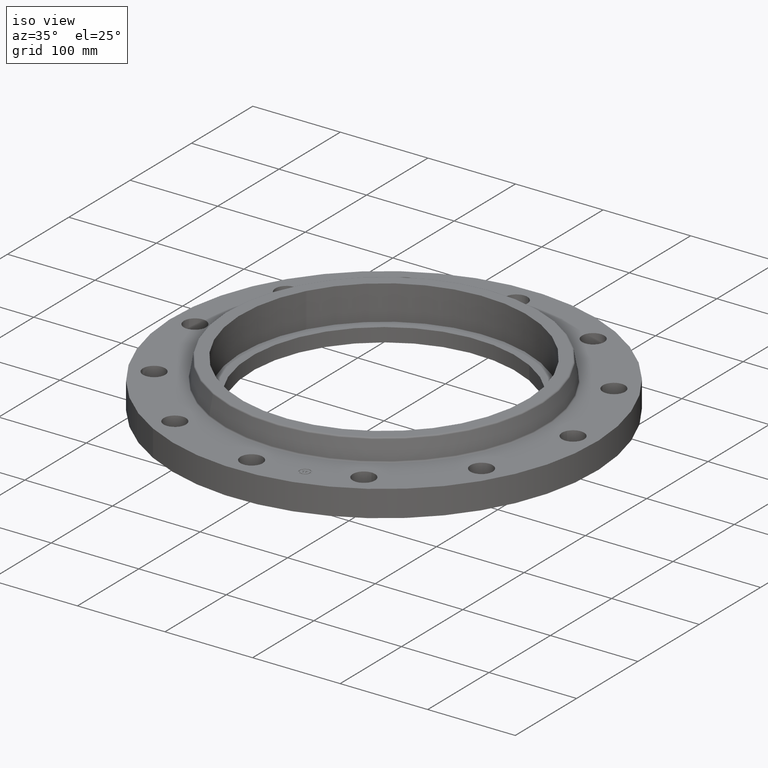
[diagram: clean part render]
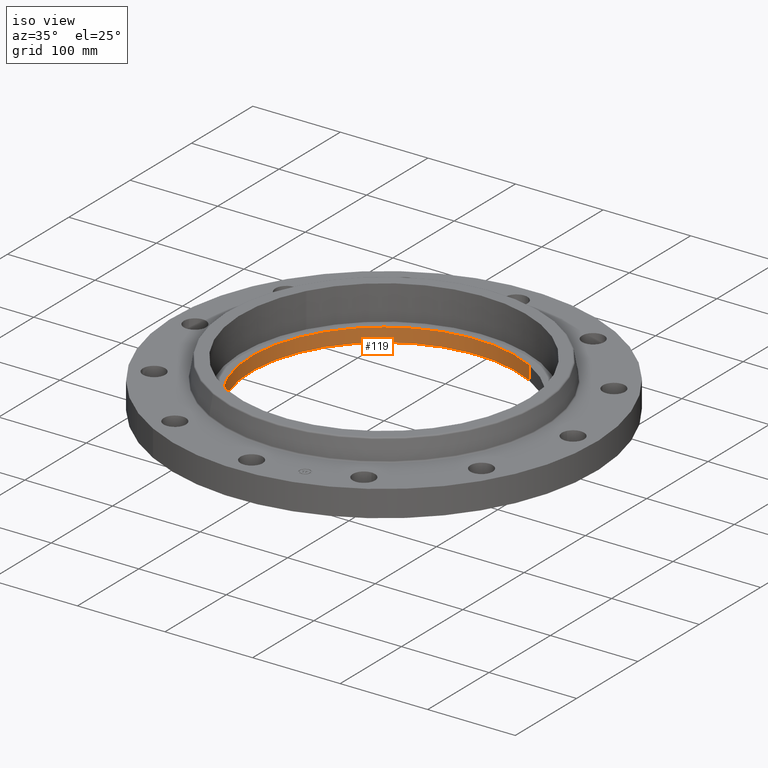
[diagram: same view with one face highlighted and labeled with its STEP entity id]
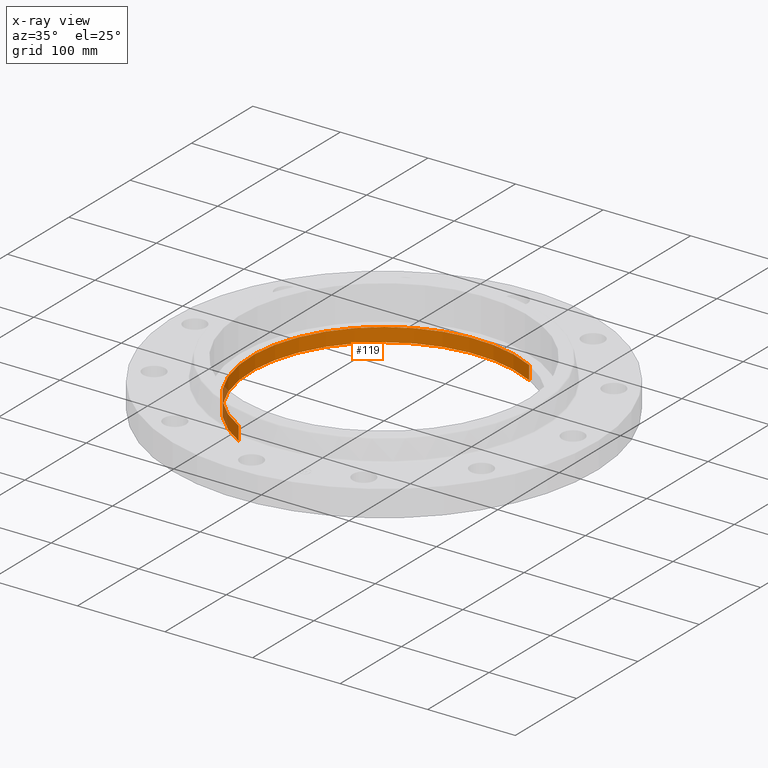
[diagram: x-ray of the same camera — body ghosted, the highlighted face saturated]
A machine part, iso view. The second image highlights one B-rep face of the part: STEP entity #119.
The next image is the same camera in x-ray: the body ghosted, the highlighted face saturated — about 3% of this face is hidden behind the body in this view.
In plain terms, the highlighted cylindrical surface (partial cylindrical patch) has radius 151.613 mm, axis along (0, 0, -1).
Its self-contained STEP definition (entity closure, byte-faithful):
#60=AXIS2_PLACEMENT_3D('Circle Axis2P3D',#58,#59,$) ;
#80=AXIS2_PLACEMENT_3D('Cylinder Axis2P3D',#77,#78,#79) ;
#110=AXIS2_PLACEMENT_3D('Circle Axis2P3D',#108,#109,$) ;
#58=CARTESIAN_POINT('Axis2P3D Location',(-2.65754172824E-015,-3.1470888887E-016,0.560000000002)) ;
#62=CARTESIAN_POINT('Vertex',(-2.86169103994,-5.23829031194,0.560000000002)) ;
#64=CARTESIAN_POINT('Vertex',(2.86169103994,5.23829031194,0.560000000002)) ;
#77=CARTESIAN_POINT('Axis2P3D Location',(0.,0.,1.02875)) ;
#82=CARTESIAN_POINT('Line Origine',(2.86169103994,5.23829031194,0.248750000001)) ;
#86=CARTESIAN_POINT('Vertex',(2.86169103994,5.23829031194,-0.0625000000003)) ;
#93=CARTESIAN_POINT('Vertex',(-2.86169103994,-5.23829031194,-0.0625000000003)) ;
#96=CARTESIAN_POINT('Line Origine',(-2.86169103994,-5.23829031194,0.248750000001)) ;
#108=CARTESIAN_POINT('Axis2P3D Location',(0.,0.,-0.0625000000003)) ;
#59=DIRECTION('Axis2P3D Direction',(0.,0.,-0.0393700787402)) ;
#78=DIRECTION('Axis2P3D Direction',(0.,0.,-0.0393700787402)) ;
#79=DIRECTION('Axis2P3D XDirection',(-0.0188750212049,-0.0345504945626,0.)) ;
#83=DIRECTION('Vector Direction',(0.,0.,-0.0393700787402)) ;
#97=DIRECTION('Vector Direction',(0.,0.,-0.0393700787402)) ;
#109=DIRECTION('Axis2P3D Direction',(0.,0.,-0.0393700787402)) ;
#84=VECTOR('Line Direction',#83,0.0393700787402) ;
#98=VECTOR('Line Direction',#97,0.0393700787402) ;
#114=ORIENTED_EDGE('',*,*,#100,.T.) ;
#115=ORIENTED_EDGE('',*,*,#112,.T.) ;
#116=ORIENTED_EDGE('',*,*,#88,.F.) ;
#117=ORIENTED_EDGE('',*,*,#66,.F.) ;
#119=ADVANCED_FACE('PartBody',(#118),#81,.F.) ;
#61=CIRCLE('generated circle',#60,5.96900000002) ;
#111=CIRCLE('generated circle',#110,5.96900000002) ;
#81=CYLINDRICAL_SURFACE('generated cylinder',#80,5.96900000002) ;
#66=EDGE_CURVE('',#63,#65,#61,.T.) ;
#88=EDGE_CURVE('',#65,#87,#85,.T.) ;
#100=EDGE_CURVE('',#63,#94,#99,.T.) ;
#112=EDGE_CURVE('',#94,#87,#111,.T.) ;
#113=EDGE_LOOP('',(#114,#115,#116,#117)) ;
#118=FACE_OUTER_BOUND('',#113,.T.) ;
#85=LINE('Line',#82,#84) ;
#99=LINE('Line',#96,#98) ;
#63=VERTEX_POINT('',#62) ;
#65=VERTEX_POINT('',#64) ;
#87=VERTEX_POINT('',#86) ;
#94=VERTEX_POINT('',#93) ;